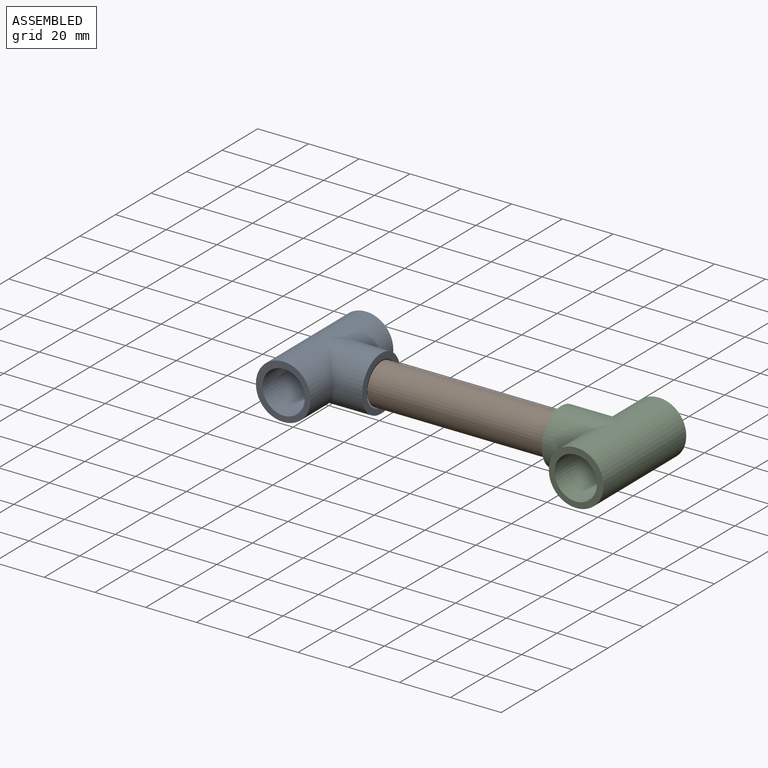
[diagram: assembled view]
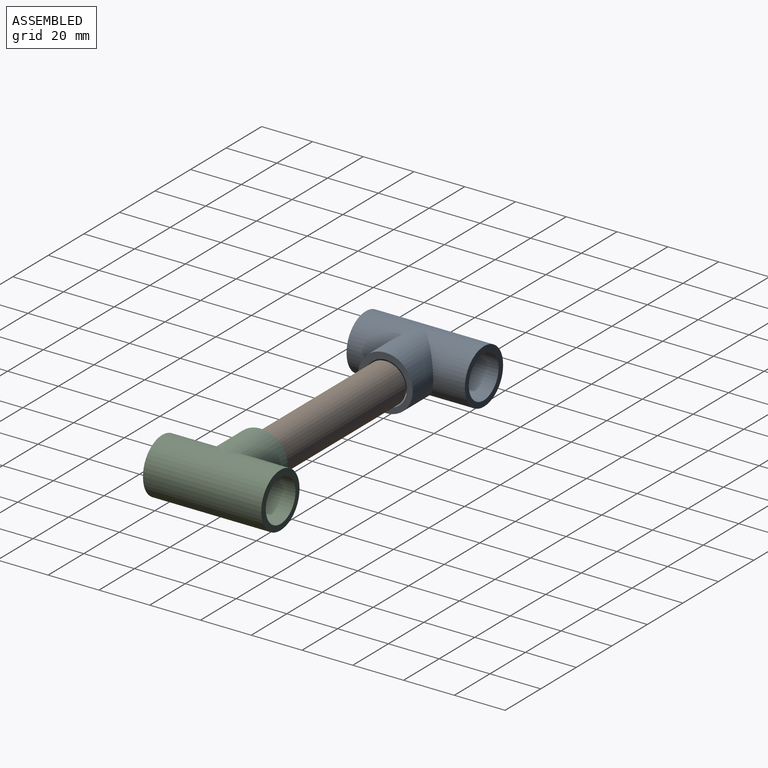
[diagram: assembled view, second angle]
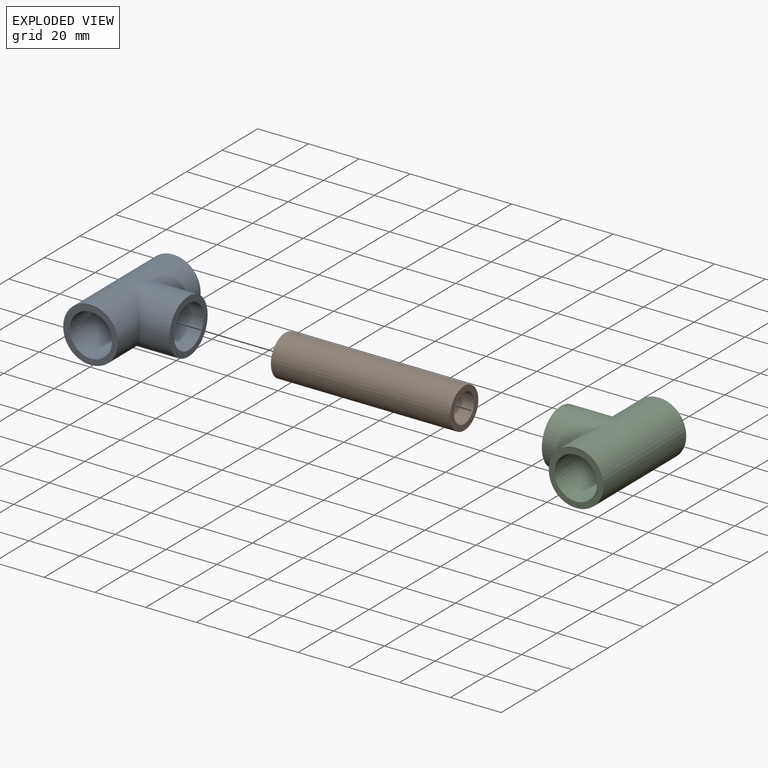
[diagram: exploded view]
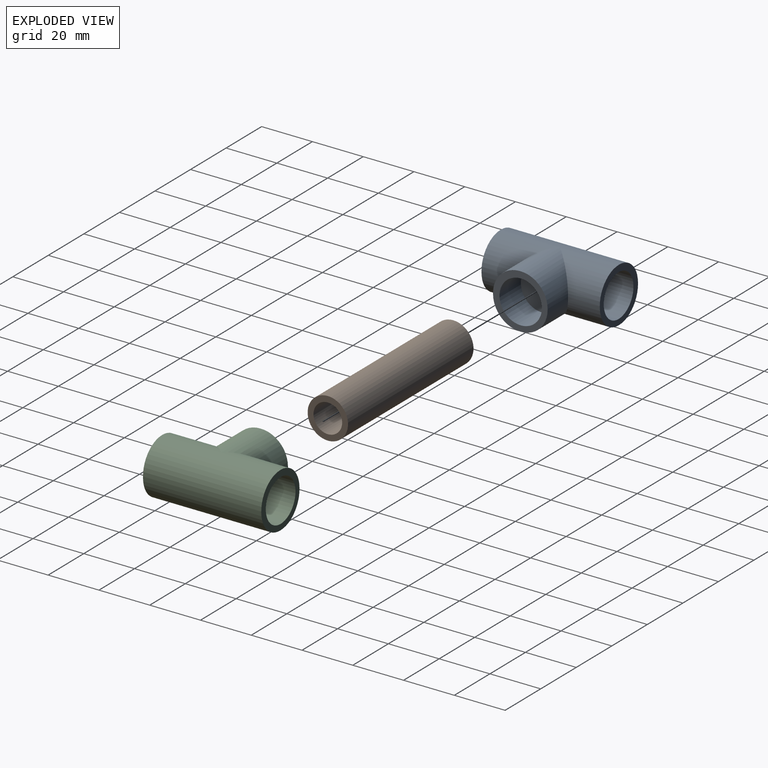
[diagram: exploded view, second angle]
ASSEMBLY  parts=3 mates=2
PART A: 23 faces, bbox 46.6x33x21.5 mm
  f0: plane 21.5x21.5mm, normal (1,0,0), area 146.8mm2, adj f1,f7,f8,f9,f12,f14,f17,f19
  f1: plane 12.6x0.3mm, normal (0,1,0), area 3.8mm2, adj f0,f2,f14,f19
  f2: plane 11.5x0.3mm, normal (1,0,0), area 3.4mm2, adj f1,f3,f13,f18
  f3: plane 21.5x21.5mm, normal (0,1,0), area 146.8mm2, adj f2,f4,f8,f9,f11,f13,f16,f18
  f4: plane 11.5x0.3mm, normal (-1,0,0), area 3.4mm2, adj f3,f5,f11,f16
  f5: plane 12.5x0.3mm, normal (0,1,0), area 3.7mm2, adj f4,f6,f10,f15
  f6: plane 21.5x21.5mm, normal (-1,0,0), area 146.8mm2, adj f5,f7,f8,f9,f10,f12,f15,f17
  f7: plane 46.6x0.3mm, normal (0,-1,0), area 14mm2, adj f0,f6,f12,f17
  f8: plane 46.6x22.4mm, normal (0,0,1), area 20.6mm2, adj f0,f3,f6,f15,f16,f17,f18,f19
  f9: plane 46.6x22.4mm, normal (0,0,-1), area 20.6mm2, adj f0,f3,f6,f10,f11,f12,f13,f14
  f10: cylinder r=10.6mm len=23.1mm, axis (-1,0,0), area 272.3mm2, adj f5,f6,f9,f11
  f11: cylinder r=10.6mm len=22.1mm, axis (0,-1,0), area 255.6mm2, adj f3,f4,f9,f10
  f12: cylinder r=10.6mm len=46.6mm, axis (1,0,0), area 775.9mm2, adj f0,f6,f7,f9
  f13: cylinder r=10.6mm len=22.1mm, axis (0,1,0), area 255.6mm2, adj f2,f3,f9,f14
  f14: cylinder r=10.6mm len=23.2mm, axis (-1,0,0), area 273.9mm2, adj f0,f1,f9,f13
  f15: cylinder r=10.6mm len=23.1mm, axis (1,0,0), area 272.3mm2, adj f5,f6,f8,f16
  f16: cylinder r=10.6mm len=22.1mm, axis (0,1,0), area 255.6mm2, adj f3,f4,f8,f15
  f17: cylinder r=10.6mm len=46.6mm, axis (-1,0,0), area 775.9mm2, adj f0,f6,f7,f8
  f18: cylinder r=10.6mm len=22.1mm, axis (0,-1,0), area 255.6mm2, adj f2,f3,f8,f19
  f19: cylinder r=10.6mm len=23.2mm, axis (1,0,0), area 273.9mm2, adj f0,f1,f8,f18
  f20: cylinder r=8.35mm len=46.6mm, axis (1,0,0), area 2444.9mm2, adj f0,f6
  f21: cylinder r=8.35mm len=16.7mm, axis (0,1,0), area 629.6mm2, adj f3,f22
  f22: plane 16.7x16.7mm, normal (0,1,0), area 219mm2, adj f21
PART B: 4 faces, bbox 15.9x15.9x70.6 mm
  f0: cylinder r=5.65mm len=70.6mm, axis (0,0,-1), area 2506.3mm2, adj f2,f3
  f1: cylinder r=7.95mm len=70.6mm, axis (0,0,-1), area 3526.6mm2, adj f2,f3
  f2: plane 15.9x15.9mm, normal (0,0,1), area 98.3mm2, adj f0,f1
  f3: plane 15.9x15.9mm, normal (0,0,-1), area 98.3mm2, adj f0,f1
PART C: same geometry as A
PLACE A rot(axis=(0,0,-1),90deg) t=(-152.91,-28.49,-2.01)mm
PLACE B rot(axis=(0,1,0),90deg) t=(-119.91,-18.97,8.59)mm
PLACE C rot(axis=(0,0,1),90deg) t=(-16.31,-9.45,-2.01)mm
MATE fastened B.f0 <-> A.f11  axis (-1,0,0) through (-119.91,-18.97,8.59)mm
MATE fastened B.f0 <-> C.f11  axis (1,0,0) through (-49.31,-18.97,8.59)mm
